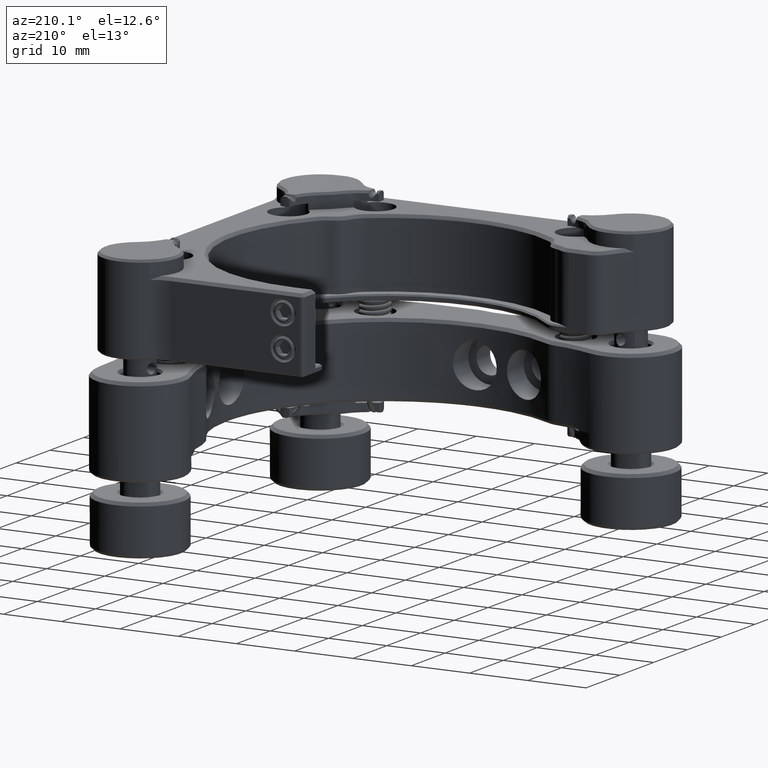
[diagram: clean part render]
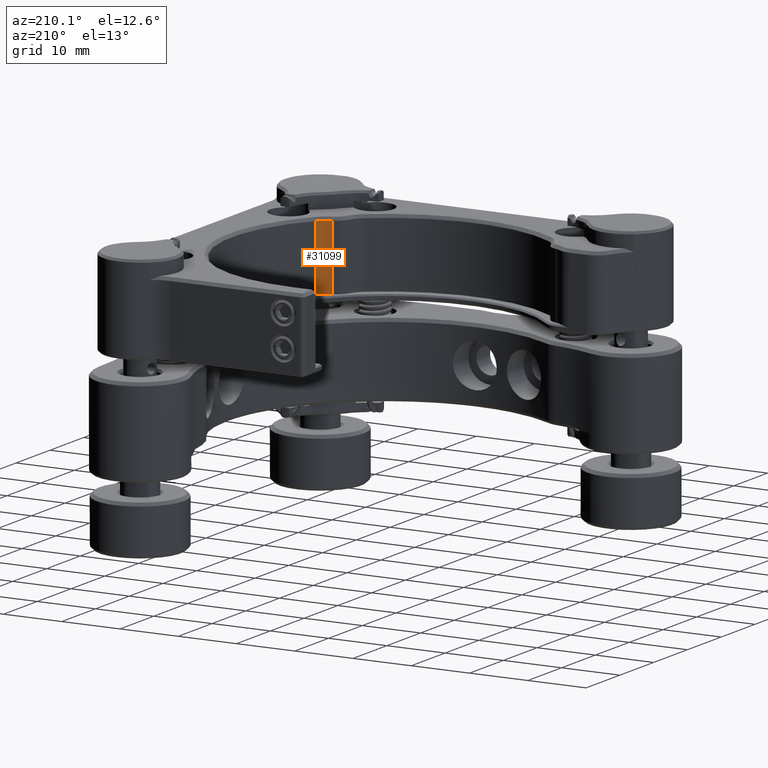
[diagram: same view with one face highlighted and labeled with its STEP entity id]
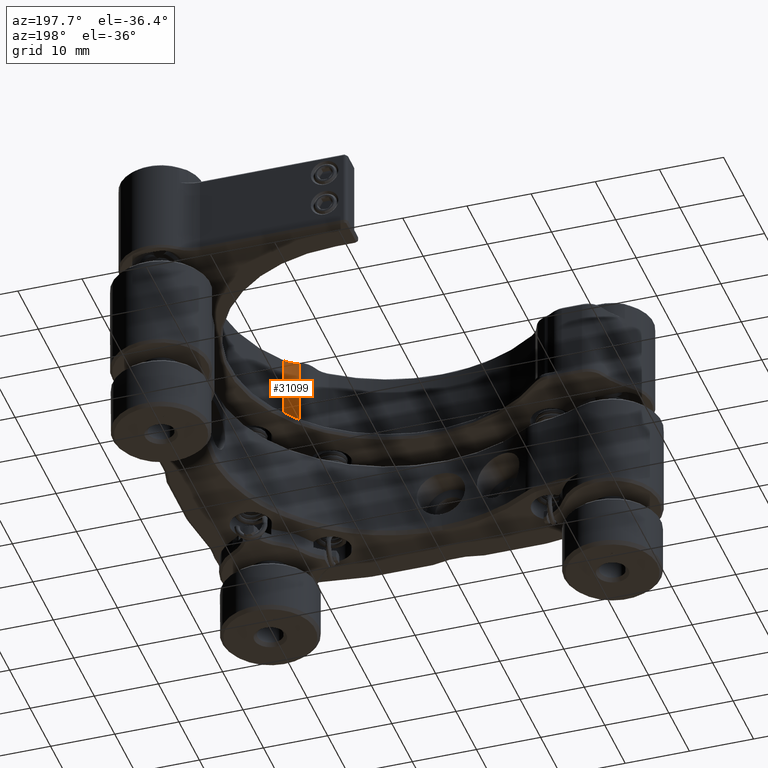
[diagram: same view with one face highlighted and labeled with its STEP entity id]
A machine part, auxiliary view. The second image highlights one B-rep face of the part: STEP entity #31099.
A second angle (auxiliary view) of the same face is appended — the face is thin or edge-on in the first view.
In plain terms, the highlighted cylindrical surface (edge-blend (fillet) strip) has radius 4 mm, axis along (0, -0, 1).
Its self-contained STEP definition (entity closure, byte-faithful):
#936 = EDGE_CURVE ( 'NONE', #27605, #9466, #14633, .T. ) ;
#2370 = ORIENTED_EDGE ( 'NONE', *, *, #17825, .T. ) ;
#2757 = LINE ( 'NONE', #8104, #2957 ) ;
#2957 = VECTOR ( 'NONE', #12351, 1000.000000000000000 ) ;
#2964 = CARTESIAN_POINT ( 'NONE',  ( -6.214465336168872867, 23.40295210589912145, -116.4412906867652850 ) ) ;
#3139 = CARTESIAN_POINT ( 'NONE',  ( -7.440770796132543552, 27.21033636794350130, -116.4412906867652850 ) ) ;
#3321 = ORIENTED_EDGE ( 'NONE', *, *, #21314, .T. ) ;
#3895 = VERTEX_POINT ( 'NONE', #8709 ) ;
#5255 = DIRECTION ( 'NONE',  ( 1.000000000000000000, -2.602085213974207995E-15, 0.000000000000000000 ) ) ;
#7935 = ORIENTED_EDGE ( 'NONE', *, *, #936, .F. ) ;
#8104 = CARTESIAN_POINT ( 'NONE',  ( -4.237949719210842403, 24.81410241667202143, -116.4412906867652850 ) ) ;
#8159 = CARTESIAN_POINT ( 'NONE',  ( -7.440770796132543552, 27.21033636794350130, -40.77081459346584325 ) ) ;
#8709 = CARTESIAN_POINT ( 'NONE',  ( -4.237949719210842403, 24.81410241667202143, -40.77081459346584325 ) ) ;
#9286 = ORIENTED_EDGE ( 'NONE', *, *, #27590, .F. ) ;
#9466 = VERTEX_POINT ( 'NONE', #10398 ) ;
#10398 = CARTESIAN_POINT ( 'NONE',  ( -6.214465336168871978, 23.40295210589911790, -40.77081459346584325 ) ) ;
#10537 = FACE_OUTER_BOUND ( 'NONE', #28350, .T. ) ;
#12351 = DIRECTION ( 'NONE',  ( 0.000000000000000000, -0.000000000000000000, 1.000000000000000000 ) ) ;
#12733 = DIRECTION ( 'NONE',  ( 0.000000000000000000, -0.000000000000000000, 1.000000000000000000 ) ) ;
#13359 = CARTESIAN_POINT ( 'NONE',  ( -4.237949719201313137, 24.81410241669614791, -29.57081459347375230 ) ) ;
#14047 = AXIS2_PLACEMENT_3D ( 'NONE', #3139, #12733, #17942 ) ;
#14633 = LINE ( 'NONE', #2964, #19736 ) ;
#15114 = CYLINDRICAL_SURFACE ( 'NONE', #14047, 4.000000000000000000 ) ;
#15717 = DIRECTION ( 'NONE',  ( 1.000000000000000000, -2.602085213965210642E-15, 0.000000000000000000 ) ) ;
#17825 = EDGE_CURVE ( 'NONE', #3895, #9466, #19334, .T. ) ;
#17942 = DIRECTION ( 'NONE',  ( 1.000000000000000000, -2.602085213965210642E-15, 0.000000000000000000 ) ) ;
#18285 = CARTESIAN_POINT ( 'NONE',  ( -7.440770796132543552, 27.21033636794350130, -29.57081459348164998 ) ) ;
#19334 = CIRCLE ( 'NONE', #29862, 4.000000000000000000 ) ;
#19647 = DIRECTION ( 'NONE',  ( -0.000000000000000000, 0.000000000000000000, -1.000000000000000000 ) ) ;
#19736 = VECTOR ( 'NONE', #19647, 1000.000000000000000 ) ;
#20532 = VERTEX_POINT ( 'NONE', #13359 ) ;
#21314 = EDGE_CURVE ( 'NONE', #27605, #20532, #23436, .T. ) ;
#21955 = CARTESIAN_POINT ( 'NONE',  ( -6.214465336162780851, 23.40295210590433328, -29.57081459348164998 ) ) ;
#22110 = DIRECTION ( 'NONE',  ( 0.000000000000000000, -0.000000000000000000, 1.000000000000000000 ) ) ;
#23436 = CIRCLE ( 'NONE', #29455, 3.999999999986169286 ) ;
#27590 = EDGE_CURVE ( 'NONE', #3895, #20532, #2757, .T. ) ;
#27605 = VERTEX_POINT ( 'NONE', #21955 ) ;
#27658 = DIRECTION ( 'NONE',  ( -0.000000000000000000, 0.000000000000000000, -1.000000000000000000 ) ) ;
#28350 = EDGE_LOOP ( 'NONE', ( #3321, #9286, #2370, #7935 ) ) ;
#29455 = AXIS2_PLACEMENT_3D ( 'NONE', #18285, #22110, #5255 ) ;
#29862 = AXIS2_PLACEMENT_3D ( 'NONE', #8159, #27658, #15717 ) ;
#31099 = ADVANCED_FACE ( 'NONE', ( #10537 ), #15114, .F. ) ;